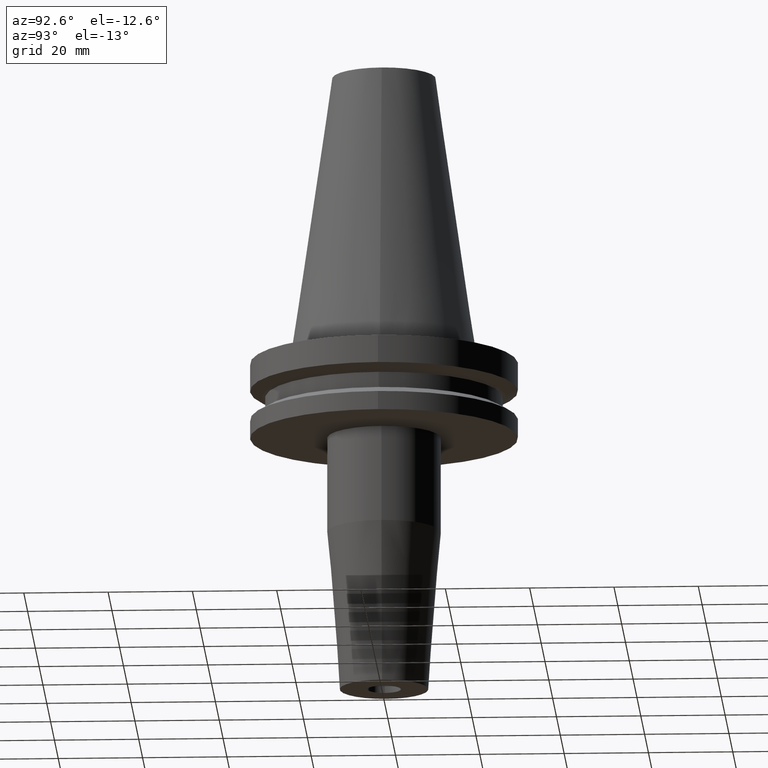
[diagram: clean part render]
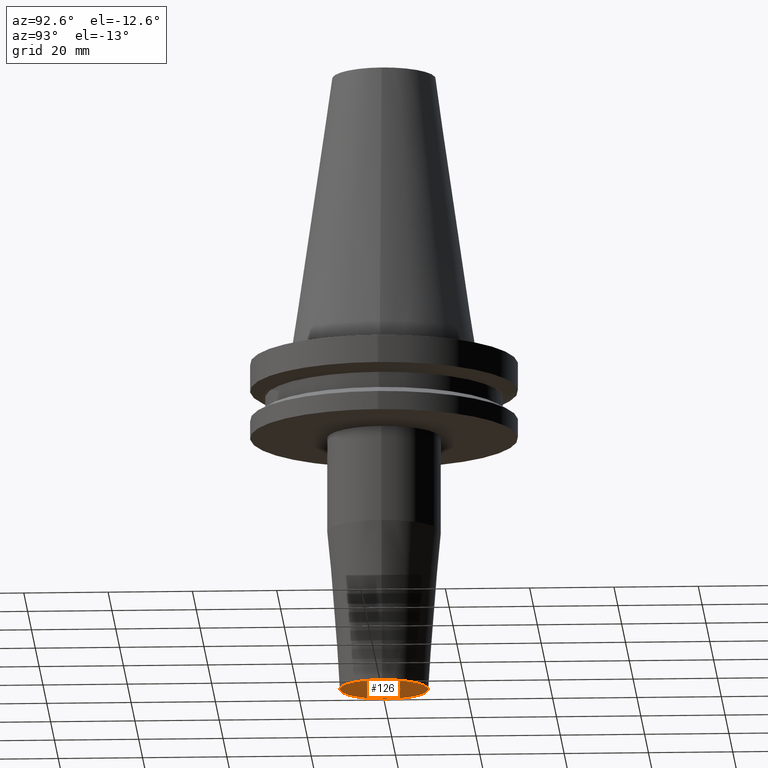
[diagram: same view with one face highlighted and labeled with its STEP entity id]
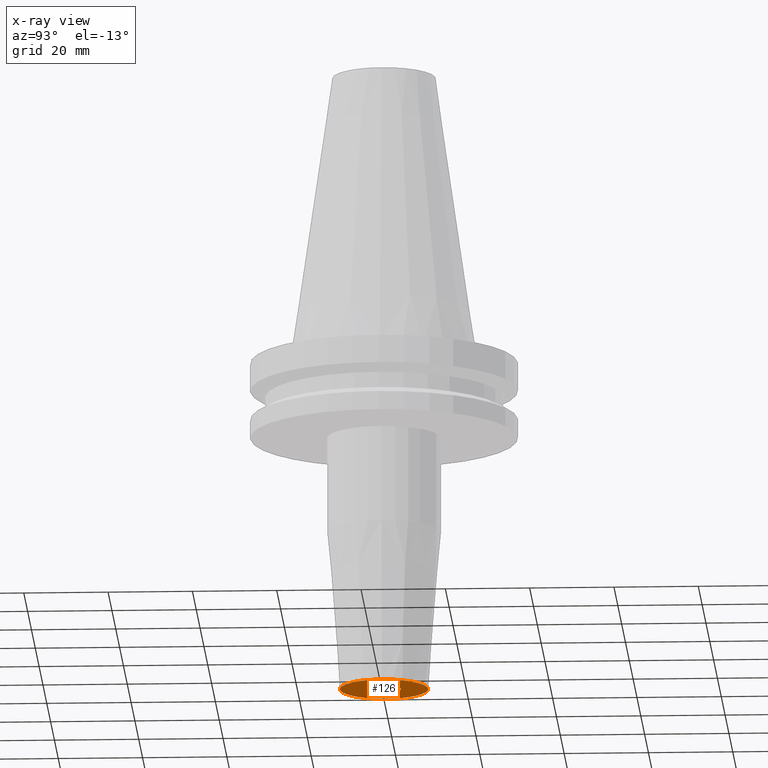
[diagram: x-ray of the same camera — body ghosted, the highlighted face saturated]
A machine part, auxiliary view. The second image highlights one B-rep face of the part: STEP entity #126.
The next image is the same camera in x-ray: the body ghosted, the highlighted face saturated — about 0% of this face is hidden behind the body in this view.
In plain terms, the highlighted planar face has unit normal (0, -0, 1).
Its self-contained STEP definition (entity closure, byte-faithful):
#14 = FACE_OUTER_BOUND ( 'NONE', #679, .T. ) ;
#26 = DIRECTION ( 'NONE',  ( 0.000000000000000000, -0.000000000000000000, 1.000000000000000000 ) ) ;
#57 = AXIS2_PLACEMENT_3D ( 'NONE', #130, #546, #362 ) ;
#76 = DIRECTION ( 'NONE',  ( -0.000000000000000000, -0.000000000000000000, 1.000000000000000000 ) ) ;
#97 = EDGE_CURVE ( 'NONE', #645, #484, #614, .T. ) ;
#126 = ADVANCED_FACE ( 'NONE', ( #14, #311 ), #660, .F. ) ;
#129 = ORIENTED_EDGE ( 'NONE', *, *, #97, .T. ) ;
#130 = CARTESIAN_POINT ( 'NONE',  ( 0.000000000000000000, 0.000000000000000000, -80.00000000000000000 ) ) ;
#177 = CARTESIAN_POINT ( 'NONE',  ( 3.999999999999994671, 0.000000000000000000, -80.00000000000000000 ) ) ;
#179 = ORIENTED_EDGE ( 'NONE', *, *, #536, .F. ) ;
#181 = DIRECTION ( 'NONE',  ( 1.000000000000000000, 0.000000000000000000, 0.000000000000000000 ) ) ;
#185 = CARTESIAN_POINT ( 'NONE',  ( -3.999999999999994671, 4.898587196589406912E-16, -80.00000000000000000 ) ) ;
#190 = AXIS2_PLACEMENT_3D ( 'NONE', #553, #730, #261 ) ;
#255 = CARTESIAN_POINT ( 'NONE',  ( 0.000000000000000000, 0.000000000000000000, -80.00000000000000000 ) ) ;
#261 = DIRECTION ( 'NONE',  ( 1.000000000000000000, 0.000000000000000000, 0.000000000000000000 ) ) ;
#303 = CARTESIAN_POINT ( 'NONE',  ( 0.000000000000000000, 0.000000000000000000, -80.00000000000000000 ) ) ;
#311 = FACE_BOUND ( 'NONE', #442, .T. ) ;
#320 = VERTEX_POINT ( 'NONE', #560 ) ;
#362 = DIRECTION ( 'NONE',  ( 1.000000000000000000, 0.000000000000000000, 0.000000000000000000 ) ) ;
#374 = EDGE_CURVE ( 'NONE', #484, #645, #504, .T. ) ;
#438 = DIRECTION ( 'NONE',  ( 1.000000000000000000, 0.000000000000000000, 0.000000000000000000 ) ) ;
#442 = EDGE_LOOP ( 'NONE', ( #648, #129 ) ) ;
#456 = CIRCLE ( 'NONE', #477, 10.49999999999999467 ) ;
#463 = VERTEX_POINT ( 'NONE', #586 ) ;
#477 = AXIS2_PLACEMENT_3D ( 'NONE', #255, #76, #611 ) ;
#484 = VERTEX_POINT ( 'NONE', #177 ) ;
#504 = CIRCLE ( 'NONE', #747, 3.999999999999994671 ) ;
#509 = ORIENTED_EDGE ( 'NONE', *, *, #533, .F. ) ;
#527 = CIRCLE ( 'NONE', #190, 10.49999999999999467 ) ;
#533 = EDGE_CURVE ( 'NONE', #320, #463, #527, .T. ) ;
#536 = EDGE_CURVE ( 'NONE', #463, #320, #456, .T. ) ;
#546 = DIRECTION ( 'NONE',  ( -0.000000000000000000, -0.000000000000000000, 1.000000000000000000 ) ) ;
#553 = CARTESIAN_POINT ( 'NONE',  ( 0.000000000000000000, 0.000000000000000000, -80.00000000000000000 ) ) ;
#555 = CARTESIAN_POINT ( 'NONE',  ( 0.000000000000000000, 10.49999999999999467, -80.00000000000000000 ) ) ;
#560 = CARTESIAN_POINT ( 'NONE',  ( 10.49999999999999467, 0.000000000000000000, -80.00000000000000000 ) ) ;
#586 = CARTESIAN_POINT ( 'NONE',  ( -10.49999999999999467, 1.469576158976823356E-15, -80.00000000000000000 ) ) ;
#611 = DIRECTION ( 'NONE',  ( 1.000000000000000000, 0.000000000000000000, 0.000000000000000000 ) ) ;
#614 = CIRCLE ( 'NONE', #57, 3.999999999999994671 ) ;
#645 = VERTEX_POINT ( 'NONE', #185 ) ;
#648 = ORIENTED_EDGE ( 'NONE', *, *, #374, .T. ) ;
#660 = PLANE ( 'NONE',  #683 ) ;
#679 = EDGE_LOOP ( 'NONE', ( #509, #179 ) ) ;
#683 = AXIS2_PLACEMENT_3D ( 'NONE', #555, #26, #438 ) ;
#721 = DIRECTION ( 'NONE',  ( -0.000000000000000000, -0.000000000000000000, 1.000000000000000000 ) ) ;
#730 = DIRECTION ( 'NONE',  ( -0.000000000000000000, -0.000000000000000000, 1.000000000000000000 ) ) ;
#747 = AXIS2_PLACEMENT_3D ( 'NONE', #303, #721, #181 ) ;